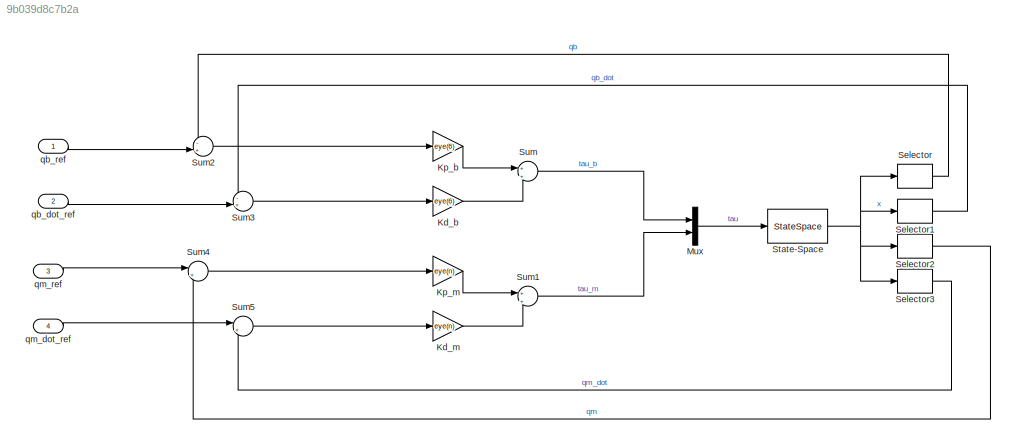
MODEL slx_9b039d8c7b2a
KIND model
CONFIG AbsTol = auto
CONFIG EnableMultiTasking = off
CONFIG FixedStep = auto
CONFIG MaxStep = auto
CONFIG MinStep = auto
CONFIG RelTol = 1e-3
CONFIG SampleTimeConstraint = Unconstrained
CONFIG SolverName = VariableStepAuto
CONFIG StartTime = 0.0
CONFIG StopTime = 10.0
BLOCK [Gain] Kd_b
  Gain = eye(6)
  Multiplication = Matrix(K*u)
BLOCK [Gain] Kd_m
  Gain = eye(n)
  Multiplication = Matrix(K*u)
BLOCK [Gain] Kp_b
  Gain = eye(6)
  Multiplication = Matrix(K*u)
BLOCK [Gain] Kp_m
  Gain = eye(n)
  Multiplication = Matrix(K*u)
BLOCK [Mux] Mux
  DisplayOption = bar
  Inputs = 2
  Ports = [2, 1]
BLOCK [Selector] Selector
  IndexOptions = Index vector (dialog)
  Indices = [1:6]
  OutputSizes = 1
  Ports = [1, 1]
BLOCK [Selector] Selector1
  IndexOptions = Index vector (dialog)
  Indices = [N+1:N+6]
  OutputSizes = 1
  Ports = [1, 1]
BLOCK [Selector] Selector2
  IndexOptions = Index vector (dialog)
  Indices = [7:6+n]
  OutputSizes = 1
  Ports = [1, 1]
BLOCK [Selector] Selector3
  IndexOptions = Index vector (dialog)
  Indices = [N+7:2*N]
  OutputSizes = 1
  Ports = [1, 1]
BLOCK [StateSpace] State-Space
  A = A
  B = B
  C = C
  D = D
  InitialCondition = x0
  Ports = [1, 1]
BLOCK [Sum] Sum
  Inputs = +|+
  Ports = [2, 1]
BLOCK [Sum] Sum1
  Inputs = +|+
  Ports = [2, 1]
BLOCK [Sum] Sum2
  Inputs = -+|
  Ports = [2, 1]
BLOCK [Sum] Sum3
  Inputs = -+|
  Ports = [2, 1]
BLOCK [Sum] Sum4
  Inputs = |+-
  Ports = [2, 1]
BLOCK [Sum] Sum5
  Inputs = |+-
  Ports = [2, 1]
BLOCK [Inport] qb_dot_ref
  Port = 2
  PortDimensions = 6
BLOCK [Inport] qb_ref
  PortDimensions = 6
BLOCK [Inport] qm_dot_ref
  Port = 4
  PortDimensions = n
BLOCK [Inport] qm_ref
  Port = 3
  PortDimensions = n
LINE Kd_b:1 -> Sum:2
LINE Kd_m:1 -> Sum1:2
LINE Kp_b:1 -> Sum:1
LINE Kp_m:1 -> Sum1:1
LINE Mux:1 -> State-Space:1
LINE Selector1:1 -> Sum3:1
LINE Selector2:1 -> Sum4:2
LINE Selector3:1 -> Sum5:2
LINE Selector:1 -> Sum2:1
NET State-Space:1 -> Selector1:1, Selector2:1, Selector3:1, Selector:1
LINE Sum1:1 -> Mux:2
LINE Sum2:1 -> Kp_b:1
LINE Sum3:1 -> Kd_b:1
LINE Sum4:1 -> Kp_m:1
LINE Sum5:1 -> Kd_m:1
LINE Sum:1 -> Mux:1
LINE qb_dot_ref:1 -> Sum3:2
LINE qb_ref:1 -> Sum2:2
LINE qm_dot_ref:1 -> Sum5:1
LINE qm_ref:1 -> Sum4:1
note: NET lines group one-source signal fan-out (src -> all destinations, sorted); 1:1 wires keep LINE
